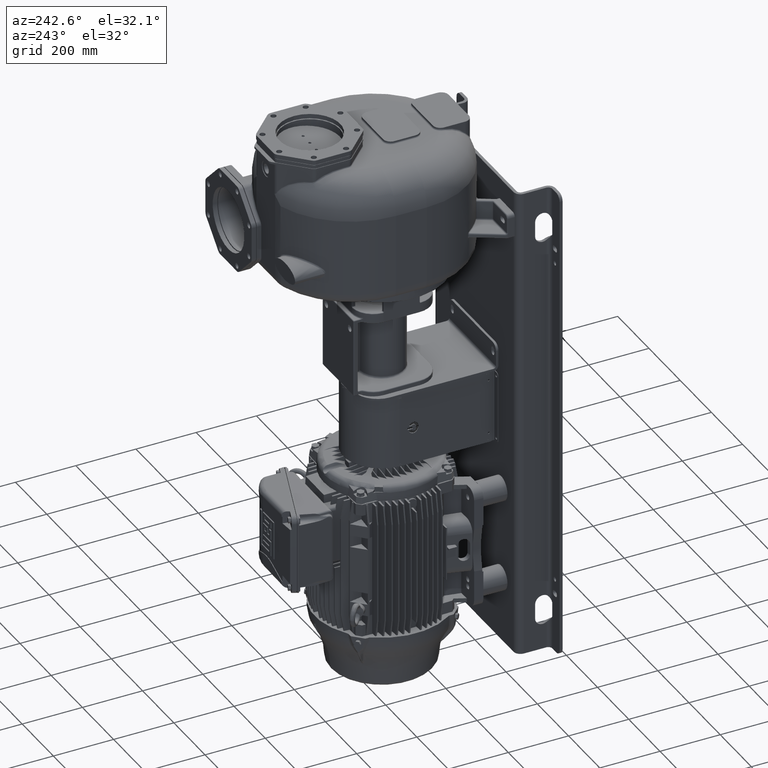
[diagram: clean part render]
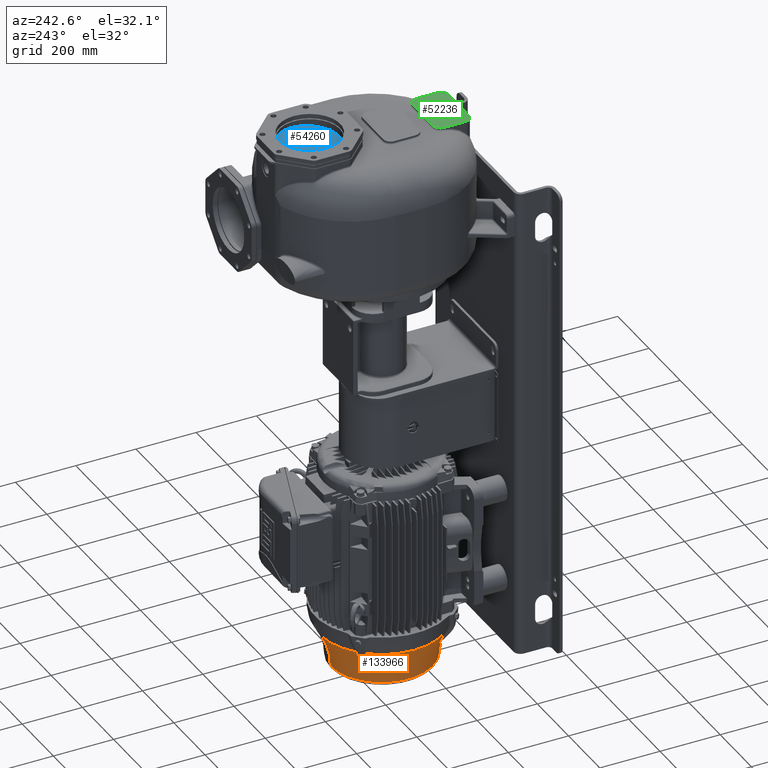
[diagram: same view with three faces highlighted in distinct colors, each labeled with its STEP entity id]
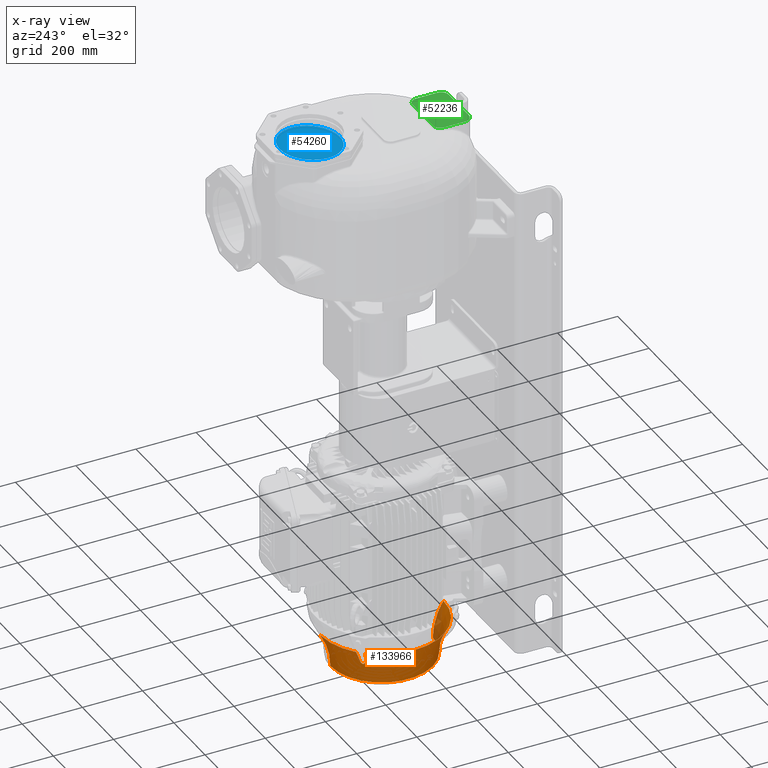
[diagram: x-ray of the same camera — body ghosted, the three highlighted faces saturated]
A machine part, auxiliary view with three faces highlighted in distinct colors.
The next image is the same camera in x-ray (body ghosted, the three faces saturated) — at least one of them is partly hidden behind the body in this view.
Their STEP definitions:

[orange] entity #133966 — the highlighted toroidal blend (fillet) surface has major radius 390 mm and minor (blend) radius 220 mm.
#72999=CARTESIAN_POINT('',(9.552245033349E-14,7.E2,-1.547963905070E3));
#73000=DIRECTION('',(-1.E0,0.E0,0.E0));
#73001=DIRECTION('',(0.E0,-1.E0,0.E0));
#73002=AXIS2_PLACEMENT_3D('',#72999,#73000,#73001);
#74268=CARTESIAN_POINT('',(-1.549465969935E2,1.755533733687E2,
-1.428680570476E3));
#74286=CARTESIAN_POINT('',(-1.549465969935E2,1.755533733687E2,
-1.428680570476E3));
#74287=CARTESIAN_POINT('',(-1.543256442728E2,1.759224251612E2,
-1.429782225322E3));
#74288=CARTESIAN_POINT('',(-1.531145892620E2,1.766664238559E2,
-1.431998289404E3));
#74289=CARTESIAN_POINT('',(-1.507932605186E2,1.781489328110E2,
-1.436478824012E3));
#74290=CARTESIAN_POINT('',(-1.480551888183E2,1.799593299854E2,
-1.442167005868E3));
#74291=CARTESIAN_POINT('',(-1.460038277682E2,1.813180234661E2,
-1.446807050398E3));
#74292=CARTESIAN_POINT('',(-1.450042930626E2,1.819640815810E2,
-1.449148011676E3));
#74357=CARTESIAN_POINT('',(-1.450041032760E2,1.819642040647E2,
-1.449148455922E3));
#74358=CARTESIAN_POINT('',(-1.446456203059E2,1.821959129458E2,
-1.449988045172E3));
#74359=CARTESIAN_POINT('',(-1.439494678881E2,1.826419752748E2,
-1.451639901061E3));
#74360=CARTESIAN_POINT('',(-1.429542021516E2,1.832611843021E2,
-1.454051077199E3));
#74361=CARTESIAN_POINT('',(-1.420246028947E2,1.838161668771E2,
-1.456339911570E3));
#74362=CARTESIAN_POINT('',(-1.411709360782E2,1.843001127421E2,
-1.458466017440E3));
#74363=CARTESIAN_POINT('',(-1.404019119103E2,1.847080038959E2,
-1.460391149504E3));
#74364=CARTESIAN_POINT('',(-1.397106406179E2,1.850470195816E2,
-1.462121432995E3));
#74365=CARTESIAN_POINT('',(-1.390839107523E2,1.853272446995E2,
-1.463682207425E3));
#74366=CARTESIAN_POINT('',(-1.385172007234E2,1.855553942213E2,
-1.465081176987E3));
#74367=CARTESIAN_POINT('',(-1.379993812194E2,1.857400875009E2,
-1.466343410639E3));
#74368=CARTESIAN_POINT('',(-1.375201293607E2,1.858890924801E2,
-1.467494124322E3));
#74369=CARTESIAN_POINT('',(-1.370779158682E2,1.860064024304E2,
-1.468537450346E3));
#74370=CARTESIAN_POINT('',(-1.366659210935E2,1.860970580981E2,
-1.469490386380E3));
#74371=CARTESIAN_POINT('',(-1.362751713653E2,1.861656778982E2,
-1.470374963436E3));
#74372=CARTESIAN_POINT('',(-1.359055204600E2,1.862145982541E2,
-1.471192993052E3));
#74373=CARTESIAN_POINT('',(-1.355600470637E2,1.862456822318E2,
-1.471939173205E3));
#74374=CARTESIAN_POINT('',(-1.352352436950E2,1.862616646440E2,
-1.472623189705E3));
#74375=CARTESIAN_POINT('',(-1.349247252433E2,1.862647280889E2,
-1.473260232773E3));
#74376=CARTESIAN_POINT('',(-1.346236302419E2,1.862560194446E2,
-1.473861126937E3));
#74377=CARTESIAN_POINT('',(-1.343352825293E2,1.862368967460E2,
-1.474420548704E3));
#74378=CARTESIAN_POINT('',(-1.340606933581E2,1.862089264975E2,
-1.474938297077E3));
#74379=CARTESIAN_POINT('',(-1.337967726080E2,1.861729993529E2,
-1.475421606817E3));
#74380=CARTESIAN_POINT('',(-1.335418672019E2,1.861298128012E2,
-1.475874578407E3));
#74381=CARTESIAN_POINT('',(-1.332965031890E2,1.860803167338E2,
-1.476297324663E3));
#74382=CARTESIAN_POINT('',(-1.330599726306E2,1.860251930907E2,
-1.476692123288E3));
#74383=CARTESIAN_POINT('',(-1.328319981488E2,1.859652184660E2,
-1.477060613618E3));
#74384=CARTESIAN_POINT('',(-1.326092915929E2,1.859001827589E2,
-1.477409021465E3));
#74385=CARTESIAN_POINT('',(-1.323928531273E2,1.858309266946E2,
-1.477736557581E3));
#74386=CARTESIAN_POINT('',(-1.321843656999E2,1.857585404841E2,
-1.478041468415E3));
#74387=CARTESIAN_POINT('',(-1.319834297366E2,1.856834838160E2,
-1.478325263802E3));
#74388=CARTESIAN_POINT('',(-1.317878555792E2,1.856054484400E2,
-1.478591840017E3));
#74389=CARTESIAN_POINT('',(-1.315963393231E2,1.855242727239E2,
-1.478843517348E3));
#74390=CARTESIAN_POINT('',(-1.314098362740E2,1.854407281949E2,
-1.479079624549E3));
#74391=CARTESIAN_POINT('',(-1.312287657252E2,1.853554278563E2,
-1.479300356807E3));
#74392=CARTESIAN_POINT('',(-1.310521788563E2,1.852682892790E2,
-1.479507497013E3));
#74393=CARTESIAN_POINT('',(-1.308800004784E2,1.851795628200E2,
-1.479701619878E3));
#74394=CARTESIAN_POINT('',(-1.307122152148E2,1.850894989528E2,
-1.479883184563E3));
#74395=CARTESIAN_POINT('',(-1.305486735714E2,1.849982655300E2,
-1.480052788221E3));
#74396=CARTESIAN_POINT('',(-1.303889988399E2,1.849059098043E2,
-1.480211290953E3));
#74397=CARTESIAN_POINT('',(-1.302323767988E2,1.848121832346E2,
-1.480359907248E3));
#74398=CARTESIAN_POINT('',(-1.300791457237E2,1.847174951155E2,
-1.480498699054E3));
#74399=CARTESIAN_POINT('',(-1.299298899034E2,1.846224080210E2,
-1.480627521509E3));
#74400=CARTESIAN_POINT('',(-1.297836164112E2,1.845264739854E2,
-1.480747587650E3));
#74401=CARTESIAN_POINT('',(-1.296401920163E2,1.844297468931E2,
-1.480859273541E3));
#74402=CARTESIAN_POINT('',(-1.294996486059E2,1.843323892654E2,
-1.480962827564E3));
#74403=CARTESIAN_POINT('',(-1.293616892885E2,1.842343474976E2,
-1.481058771336E3));
#74404=CARTESIAN_POINT('',(-1.292260861916E2,1.841355751606E2,
-1.481147489996E3));
#74405=CARTESIAN_POINT('',(-1.290930923449E2,1.840363533663E2,
-1.481229008948E3));
#74406=CARTESIAN_POINT('',(-1.289625434679E2,1.839366794701E2,
-1.481303675857E3));
#74407=CARTESIAN_POINT('',(-1.288340777303E2,1.838363806136E2,
-1.481371910027E3));
#74408=CARTESIAN_POINT('',(-1.287076911204E2,1.837355267940E2,
-1.481433861339E3));
#74409=CARTESIAN_POINT('',(-1.285833635376E2,1.836341753401E2,
-1.481489691468E3));
#74410=CARTESIAN_POINT('',(-1.284608416375E2,1.835321967739E2,
-1.481539675699E3));
#74411=CARTESIAN_POINT('',(-1.283400352938E2,1.834295885956E2,
-1.481584003181E3));
#74412=CARTESIAN_POINT('',(-1.282209445704E2,1.833263996581E2,
-1.481622776307E3));
#74413=CARTESIAN_POINT('',(-1.281033033770E2,1.832224383727E2,
-1.481656162691E3));
#74414=CARTESIAN_POINT('',(-1.279872110810E2,1.831178458278E2,
-1.481684248060E3));
#74415=CARTESIAN_POINT('',(-1.278725748673E2,1.830125711734E2,
-1.481707125504E3));
#74416=CARTESIAN_POINT('',(-1.277592939558E2,1.829065447186E2,
-1.481724864206E3));
#74417=CARTESIAN_POINT('',(-1.276470917058E2,1.827995316860E2,
-1.481737558906E3));
#74418=CARTESIAN_POINT('',(-1.275358773743E2,1.826914627100E2,
-1.481745254669E3));
#74419=CARTESIAN_POINT('',(-1.274258558343E2,1.825825453460E2,
-1.481747955044E3));
#74420=CARTESIAN_POINT('',(-1.273170475628E2,1.824728014266E2,
-1.481745664866E3));
#74421=CARTESIAN_POINT('',(-1.272091973670E2,1.823619730414E2,
-1.481738379133E3));
#74422=CARTESIAN_POINT('',(-1.271021023638E2,1.822498445721E2,
-1.481726067680E3));
#74423=CARTESIAN_POINT('',(-1.269958897895E2,1.821365358003E2,
-1.481708715506E3));
#74424=CARTESIAN_POINT('',(-1.268905610121E2,1.820220160503E2,
-1.481686253634E3));
#74425=CARTESIAN_POINT('',(-1.267859417198E2,1.819060731815E2,
-1.481658597013E3));
#74426=CARTESIAN_POINT('',(-1.266819100292E2,1.817885410632E2,
-1.481625645733E3));
#74427=CARTESIAN_POINT('',(-1.265785630215E2,1.816694646286E2,
-1.481587288244E3));
#74428=CARTESIAN_POINT('',(-1.264759518504E2,1.815488468585E2,
-1.481543423695E3));
#74429=CARTESIAN_POINT('',(-1.263738790924E2,1.814263995070E2,
-1.481493847638E3));
#74430=CARTESIAN_POINT('',(-1.262723575664E2,1.813020695506E2,
-1.481438418784E3));
#74431=CARTESIAN_POINT('',(-1.261715235143E2,1.811759294845E2,
-1.481377008602E3));
#74432=CARTESIAN_POINT('',(-1.260713040452E2,1.810477954584E2,
-1.481309375990E3));
#74433=CARTESIAN_POINT('',(-1.259715187256E2,1.809173321904E2,
-1.481235175839E3));
#74434=CARTESIAN_POINT('',(-1.258722478645E2,1.807845187878E2,
-1.481154198011E3));
#74435=CARTESIAN_POINT('',(-1.257737570170E2,1.806495586911E2,
-1.481066336291E3));
#74436=CARTESIAN_POINT('',(-1.256757624703E2,1.805119282730E2,
-1.480971055808E3));
#74437=CARTESIAN_POINT('',(-1.255781790945E2,1.803713360627E2,
-1.480867909301E3));
#74438=CARTESIAN_POINT('',(-1.254813001694E2,1.802280153847E2,
-1.480756809073E3));
#74439=CARTESIAN_POINT('',(-1.253850706087E2,1.800816759625E2,
-1.480637256128E3));
#74440=CARTESIAN_POINT('',(-1.252896002012E2,1.799322223069E2,
-1.480508835749E3));
#74441=CARTESIAN_POINT('',(-1.251951606624E2,1.797797811893E2,
-1.480371289763E3));
#74442=CARTESIAN_POINT('',(-1.251016608099E2,1.796238926742E2,
-1.480223837808E3));
#74443=CARTESIAN_POINT('',(-1.250092802971E2,1.794645192036E2,
-1.480066069729E3));
#74444=CARTESIAN_POINT('',(-1.249179116378E2,1.793011394046E2,
-1.479897120826E3));
#74445=CARTESIAN_POINT('',(-1.248275202648E2,1.791332925167E2,
-1.479716116187E3));
#74446=CARTESIAN_POINT('',(-1.247386042787E2,1.789614434323E2,
-1.479523120148E3));
#74447=CARTESIAN_POINT('',(-1.246511630179E2,1.787850633409E2,
-1.479317063587E3));
#74448=CARTESIAN_POINT('',(-1.245652943388E2,1.786036036397E2,
-1.479096646270E3));
#74449=CARTESIAN_POINT('',(-1.244819712701E2,1.784183402149E2,
-1.478862780412E3));
#74450=CARTESIAN_POINT('',(-1.244013483629E2,1.782289267278E2,
-1.478614532786E3));
#74451=CARTESIAN_POINT('',(-1.243231786896E2,1.780339137419E2,
-1.478349410654E3));
#74452=CARTESIAN_POINT('',(-1.242472791204E2,1.778316181893E2,
-1.478064324798E3));
#74453=CARTESIAN_POINT('',(-1.241743336455E2,1.776225446640E2,
-1.477759221800E3));
#74454=CARTESIAN_POINT('',(-1.241051579808E2,1.774077547508E2,
-1.477435012415E3));
#74455=CARTESIAN_POINT('',(-1.240401716969E2,1.771869466727E2,
-1.477090487901E3));
#74456=CARTESIAN_POINT('',(-1.239795586127E2,1.769587063839E2,
-1.476722581201E3));
#74457=CARTESIAN_POINT('',(-1.239238256146E2,1.767222199585E2,
-1.476328945824E3));
#74458=CARTESIAN_POINT('',(-1.238736296513E2,1.764767538193E2,
-1.475907204566E3));
#74459=CARTESIAN_POINT('',(-1.238301134669E2,1.762240660345E2,
-1.475459361650E3));
#74460=CARTESIAN_POINT('',(-1.237936077219E2,1.759613111550E2,
-1.474979368116E3));
#74461=CARTESIAN_POINT('',(-1.237649227746E2,1.756865769635E2,
-1.474462416318E3));
#74462=CARTESIAN_POINT('',(-1.237452600216E2,1.754008751695E2,
-1.473909181835E3));
#74463=CARTESIAN_POINT('',(-1.237357998038E2,1.751039091849E2,
-1.473317736304E3));
#74464=CARTESIAN_POINT('',(-1.237378465231E2,1.747914797230E2,
-1.472678192022E3));
#74465=CARTESIAN_POINT('',(-1.237529205428E2,1.744643051932E2,
-1.471990584687E3));
#74466=CARTESIAN_POINT('',(-1.237828809378E2,1.741188207190E2,
-1.471245915572E3));
#74467=CARTESIAN_POINT('',(-1.238301023359E2,1.737517769509E2,
-1.470435479675E3));
#74468=CARTESIAN_POINT('',(-1.238965285255E2,1.733658957744E2,
-1.469563495026E3));
#74469=CARTESIAN_POINT('',(-1.239850124043E2,1.729572655062E2,
-1.468619797279E3));
#74470=CARTESIAN_POINT('',(-1.241005473309E2,1.725161829570E2,
-1.467580453667E3));
#74471=CARTESIAN_POINT('',(-1.242471540397E2,1.720391441364E2,
-1.466436559466E3));
#74472=CARTESIAN_POINT('',(-1.244284693501E2,1.715256540271E2,
-1.465186223714E3));
#74473=CARTESIAN_POINT('',(-1.246529916140E2,1.709628553286E2,
-1.463798162305E3));
#74474=CARTESIAN_POINT('',(-1.249283052530E2,1.703421348436E2,
-1.462253327752E3));
#74475=CARTESIAN_POINT('',(-1.252617195781E2,1.696575988171E2,
-1.460540219278E3));
#74476=CARTESIAN_POINT('',(-1.256640902266E2,1.688944482862E2,
-1.458629445429E3));
#74477=CARTESIAN_POINT('',(-1.261419928751E2,1.680473240564E2,
-1.456518320314E3));
#74478=CARTESIAN_POINT('',(-1.266909376253E2,1.671242476408E2,
-1.454243097076E3));
#74479=CARTESIAN_POINT('',(-1.273050352412E2,1.661344356064E2,
-1.451841379587E3));
#74480=CARTESIAN_POINT('',(-1.277487611572E2,1.654406004386E2,
-1.450191879702E3));
#74481=CARTESIAN_POINT('',(-1.279795576065E2,1.650829705361E2,
-1.449352595645E3));
#74483=CARTESIAN_POINT('',(-1.279794063788E2,1.650832052466E2,
-1.449353146141E3));
#74484=CARTESIAN_POINT('',(-1.286307740896E2,1.640738764172E2,
-1.446984449432E3));
#74485=CARTESIAN_POINT('',(-1.300014210533E2,1.620037458198E2,
-1.442293118351E3));
#74486=CARTESIAN_POINT('',(-1.318284602033E2,1.592415948248E2,
-1.436547826833E3));
#74487=CARTESIAN_POINT('',(-1.333241251861E2,1.569006445129E2,
-1.432026435701E3));
#74488=CARTESIAN_POINT('',(-1.340745088173E2,1.556795144954E2,
-1.429791377684E3));
#74489=CARTESIAN_POINT('',(-1.344466266313E2,1.550534030065E2,
-1.428680570476E3));
#74559=CARTESIAN_POINT('',(0.E0,3.1E2,-1.428680570477E3));
#74560=DIRECTION('',(0.E0,0.E0,-1.E0));
#74561=DIRECTION('',(0.E0,-1.E0,0.E0));
#74562=AXIS2_PLACEMENT_3D('',#74559,#74560,#74561);
#74564=CARTESIAN_POINT('',(-1.433319559899E-12,-8.E1,-1.547963905070E3));
#74565=DIRECTION('',(1.E0,0.E0,0.E0));
#74566=DIRECTION('',(0.E0,1.E0,0.E0));
#74567=AXIS2_PLACEMENT_3D('',#74564,#74565,#74566);
#74569=CARTESIAN_POINT('',(-7.703462363040E0,5.15E2,-1.428680570477E3));
#74570=CARTESIAN_POINT('',(-7.187925530576E0,5.15E2,-1.428710571602E3));
#74571=CARTESIAN_POINT('',(-6.157799159671E0,5.150000000127E2,
-1.428764534546E3));
#74572=CARTESIAN_POINT('',(-4.615808008436E0,5.149999999556E2,
-1.428827387319E3));
#74573=CARTESIAN_POINT('',(-3.075955288132E0,5.150000001651E2,
-1.428872234501E3));
#74574=CARTESIAN_POINT('',(-1.537655427323E0,5.149999993841E2,
-1.428899124675E3));
#74575=CARTESIAN_POINT('',(-5.124570849017E-1,5.150000013270E2,
-1.428905092552E3));
#74576=CARTESIAN_POINT('',(-1.263384744391E-11,5.150000013270E2,
-1.428905092552E3));
#74578=CARTESIAN_POINT('',(0.E0,3.1E2,-1.428680570477E3));
#74579=DIRECTION('',(0.E0,0.E0,-1.E0));
#74580=DIRECTION('',(-6.553746403792E-1,7.553039657965E-1,0.E0));
#74581=AXIS2_PLACEMENT_3D('',#74578,#74579,#74580);
#74583=CARTESIAN_POINT('',(0.E0,3.1E2,-1.428680570477E3));
#74584=DIRECTION('',(0.E0,0.E0,-1.E0));
#74585=DIRECTION('',(-7.553039657965E-1,-6.553746403791E-1,0.E0));
#74586=AXIS2_PLACEMENT_3D('',#74583,#74584,#74585);
#74593=CARTESIAN_POINT('',(0.E0,3.1E2,-1.547963905070E3));
#74594=DIRECTION('',(0.E0,0.E0,-1.E0));
#74595=DIRECTION('',(0.E0,-1.E0,0.E0));
#74596=AXIS2_PLACEMENT_3D('',#74593,#74594,#74595);
#82476=CARTESIAN_POINT('',(-1.344466266313E2,4.649465969935E2,
-1.428680570476E3));
#82494=CARTESIAN_POINT('',(-1.344466266313E2,4.649465969935E2,
-1.428680570476E3));
#82495=CARTESIAN_POINT('',(-1.340775748388E2,4.643256442728E2,
-1.429782225322E3));
#82496=CARTESIAN_POINT('',(-1.333335761441E2,4.631145892619E2,
-1.431998289404E3));
#82497=CARTESIAN_POINT('',(-1.318510671890E2,4.607932605186E2,
-1.436478824012E3));
#82498=CARTESIAN_POINT('',(-1.300406700146E2,4.580551888183E2,
-1.442167005868E3));
#82499=CARTESIAN_POINT('',(-1.286819765339E2,4.560038277682E2,
-1.446807050398E3));
#82500=CARTESIAN_POINT('',(-1.280359184190E2,4.550042930626E2,
-1.449148011676E3));
#82518=CARTESIAN_POINT('',(-1.280357959353E2,4.550041032760E2,
-1.449148455922E3));
#82519=CARTESIAN_POINT('',(-1.278040870542E2,4.546456203058E2,
-1.449988045172E3));
#82520=CARTESIAN_POINT('',(-1.273580247252E2,4.539494678881E2,
-1.451639901061E3));
#82521=CARTESIAN_POINT('',(-1.267388156979E2,4.529542021516E2,
-1.454051077199E3));
#82522=CARTESIAN_POINT('',(-1.261838331229E2,4.520246028947E2,
-1.456339911570E3));
#82523=CARTESIAN_POINT('',(-1.256998872579E2,4.511709360782E2,
-1.458466017441E3));
#82524=CARTESIAN_POINT('',(-1.252919961041E2,4.504019119103E2,
-1.460391149504E3));
#82525=CARTESIAN_POINT('',(-1.249529804184E2,4.497106406179E2,
-1.462121432995E3));
#82526=CARTESIAN_POINT('',(-1.246727553005E2,4.490839107523E2,
-1.463682207425E3));
#82527=CARTESIAN_POINT('',(-1.244446057787E2,4.485172007234E2,
-1.465081176987E3));
#82528=CARTESIAN_POINT('',(-1.242599124991E2,4.479993812193E2,
-1.466343410639E3));
#82529=CARTESIAN_POINT('',(-1.241109075199E2,4.475201293607E2,
-1.467494124322E3));
#82530=CARTESIAN_POINT('',(-1.239935975696E2,4.470779158682E2,
-1.468537450346E3));
#82531=CARTESIAN_POINT('',(-1.239029419019E2,4.466659210935E2,
-1.469490386380E3));
#82532=CARTESIAN_POINT('',(-1.238343221018E2,4.462751713653E2,
-1.470374963436E3));
#82533=CARTESIAN_POINT('',(-1.237854017459E2,4.459055204599E2,
-1.471192993052E3));
#82534=CARTESIAN_POINT('',(-1.237543177682E2,4.455600470637E2,
-1.471939173205E3));
#82535=CARTESIAN_POINT('',(-1.237383353560E2,4.452352436949E2,
-1.472623189705E3));
#82536=CARTESIAN_POINT('',(-1.237352719111E2,4.449247252433E2,
-1.473260232773E3));
#82537=CARTESIAN_POINT('',(-1.237439805554E2,4.446236302419E2,
-1.473861126937E3));
#82538=CARTESIAN_POINT('',(-1.237631032540E2,4.443352825293E2,
-1.474420548704E3));
#82539=CARTESIAN_POINT('',(-1.237910735025E2,4.440606933581E2,
-1.474938297077E3));
#82540=CARTESIAN_POINT('',(-1.238270006471E2,4.437967726079E2,
-1.475421606817E3));
#82541=CARTESIAN_POINT('',(-1.238701871988E2,4.435418672019E2,
-1.475874578407E3));
#82542=CARTESIAN_POINT('',(-1.239196832662E2,4.432965031890E2,
-1.476297324663E3));
#82543=CARTESIAN_POINT('',(-1.239748069093E2,4.430599726306E2,
-1.476692123288E3));
#82544=CARTESIAN_POINT('',(-1.240347815340E2,4.428319981488E2,
-1.477060613618E3));
#82545=CARTESIAN_POINT('',(-1.240998172411E2,4.426092915929E2,
-1.477409021465E3));
#82546=CARTESIAN_POINT('',(-1.241690733054E2,4.423928531273E2,
-1.477736557581E3));
#82547=CARTESIAN_POINT('',(-1.242414595159E2,4.421843656999E2,
-1.478041468415E3));
#82548=CARTESIAN_POINT('',(-1.243165161840E2,4.419834297366E2,
-1.478325263802E3));
#82549=CARTESIAN_POINT('',(-1.243945515600E2,4.417878555792E2,
-1.478591840017E3));
#82550=CARTESIAN_POINT('',(-1.244757272761E2,4.415963393231E2,
-1.478843517348E3));
#82551=CARTESIAN_POINT('',(-1.245592718052E2,4.414098362740E2,
-1.479079624549E3));
#82552=CARTESIAN_POINT('',(-1.246445721437E2,4.412287657252E2,
-1.479300356807E3));
#82553=CARTESIAN_POINT('',(-1.247317107210E2,4.410521788562E2,
-1.479507497013E3));
#82554=CARTESIAN_POINT('',(-1.248204371801E2,4.408800004784E2,
-1.479701619878E3));
#82555=CARTESIAN_POINT('',(-1.249105010472E2,4.407122152148E2,
-1.479883184563E3));
#82556=CARTESIAN_POINT('',(-1.250017344700E2,4.405486735714E2,
-1.480052788221E3));
#82557=CARTESIAN_POINT('',(-1.250940901957E2,4.403889988398E2,
-1.480211290953E3));
#82558=CARTESIAN_POINT('',(-1.251878167654E2,4.402323767988E2,
-1.480359907248E3));
#82559=CARTESIAN_POINT('',(-1.252825048845E2,4.400791457236E2,
-1.480498699054E3));
#82560=CARTESIAN_POINT('',(-1.253775919790E2,4.399298899034E2,
-1.480627521509E3));
#82561=CARTESIAN_POINT('',(-1.254735260146E2,4.397836164113E2,
-1.480747587650E3));
#82562=CARTESIAN_POINT('',(-1.255702531069E2,4.396401920163E2,
-1.480859273541E3));
#82563=CARTESIAN_POINT('',(-1.256676107346E2,4.394996486059E2,
-1.480962827564E3));
#82564=CARTESIAN_POINT('',(-1.257656525024E2,4.393616892885E2,
-1.481058771336E3));
#82565=CARTESIAN_POINT('',(-1.258644248394E2,4.392260861916E2,
-1.481147489996E3));
#82566=CARTESIAN_POINT('',(-1.259636466337E2,4.390930923449E2,
-1.481229008948E3));
#82567=CARTESIAN_POINT('',(-1.260633205299E2,4.389625434679E2,
-1.481303675857E3));
#82568=CARTESIAN_POINT('',(-1.261636193864E2,4.388340777304E2,
-1.481371910027E3));
#82569=CARTESIAN_POINT('',(-1.262644732060E2,4.387076911204E2,
-1.481433861339E3));
#82570=CARTESIAN_POINT('',(-1.263658246599E2,4.385833635375E2,
-1.481489691468E3));
#82571=CARTESIAN_POINT('',(-1.264678032261E2,4.384608416375E2,
-1.481539675699E3));
#82572=CARTESIAN_POINT('',(-1.265704114044E2,4.383400352938E2,
-1.481584003181E3));
#82573=CARTESIAN_POINT('',(-1.266736003419E2,4.382209445704E2,
-1.481622776307E3));
#82574=CARTESIAN_POINT('',(-1.267775616273E2,4.381033033771E2,
-1.481656162691E3));
#82575=CARTESIAN_POINT('',(-1.268821541722E2,4.379872110810E2,
-1.481684248060E3));
#82576=CARTESIAN_POINT('',(-1.269874288266E2,4.378725748672E2,
-1.481707125504E3));
#82577=CARTESIAN_POINT('',(-1.270934552815E2,4.377592939558E2,
-1.481724864206E3));
#82578=CARTESIAN_POINT('',(-1.272004683140E2,4.376470917058E2,
-1.481737558906E3));
#82579=CARTESIAN_POINT('',(-1.273085372900E2,4.375358773743E2,
-1.481745254669E3));
#82580=CARTESIAN_POINT('',(-1.274174546540E2,4.374258558342E2,
-1.481747955044E3));
#82581=CARTESIAN_POINT('',(-1.275271985734E2,4.373170475627E2,
-1.481745664866E3));
#82582=CARTESIAN_POINT('',(-1.276380269586E2,4.372091973670E2,
-1.481738379133E3));
#82583=CARTESIAN_POINT('',(-1.277501554279E2,4.371021023638E2,
-1.481726067680E3));
#82584=CARTESIAN_POINT('',(-1.278634641997E2,4.369958897894E2,
-1.481708715506E3));
#82585=CARTESIAN_POINT('',(-1.279779839497E2,4.368905610121E2,
-1.481686253634E3));
#82586=CARTESIAN_POINT('',(-1.280939268185E2,4.367859417198E2,
-1.481658597013E3));
#82587=CARTESIAN_POINT('',(-1.282114589368E2,4.366819100292E2,
-1.481625645733E3));
#82588=CARTESIAN_POINT('',(-1.283305353715E2,4.365785630215E2,
-1.481587288244E3));
#82589=CARTESIAN_POINT('',(-1.284511531416E2,4.364759518504E2,
-1.481543423695E3));
#82590=CARTESIAN_POINT('',(-1.285736004930E2,4.363738790924E2,
-1.481493847638E3));
#82591=CARTESIAN_POINT('',(-1.286979304494E2,4.362723575664E2,
-1.481438418784E3));
#82592=CARTESIAN_POINT('',(-1.288240705155E2,4.361715235143E2,
-1.481377008602E3));
#82593=CARTESIAN_POINT('',(-1.289522045415E2,4.360713040452E2,
-1.481309375990E3));
#82594=CARTESIAN_POINT('',(-1.290826678096E2,4.359715187256E2,
-1.481235175839E3));
#82595=CARTESIAN_POINT('',(-1.292154812122E2,4.358722478644E2,
-1.481154198011E3));
#82596=CARTESIAN_POINT('',(-1.293504413089E2,4.357737570170E2,
-1.481066336291E3));
#82597=CARTESIAN_POINT('',(-1.294880717269E2,4.356757624703E2,
-1.480971055808E3));
#82598=CARTESIAN_POINT('',(-1.296286639374E2,4.355781790944E2,
-1.480867909301E3));
#82599=CARTESIAN_POINT('',(-1.297719846153E2,4.354813001694E2,
-1.480756809073E3));
#82600=CARTESIAN_POINT('',(-1.299183240375E2,4.353850706087E2,
-1.480637256128E3));
#82601=CARTESIAN_POINT('',(-1.300677776931E2,4.352896002012E2,
-1.480508835749E3));
#82602=CARTESIAN_POINT('',(-1.302202188107E2,4.351951606624E2,
-1.480371289763E3));
#82603=CARTESIAN_POINT('',(-1.303761073257E2,4.351016608099E2,
-1.480223837808E3));
#82604=CARTESIAN_POINT('',(-1.305354807964E2,4.350092802971E2,
-1.480066069729E3));
#82605=CARTESIAN_POINT('',(-1.306988605954E2,4.349179116378E2,
-1.479897120826E3));
#82606=CARTESIAN_POINT('',(-1.308667074833E2,4.348275202648E2,
-1.479716116187E3));
#82607=CARTESIAN_POINT('',(-1.310385565677E2,4.347386042787E2,
-1.479523120148E3));
#82608=CARTESIAN_POINT('',(-1.312149366591E2,4.346511630179E2,
-1.479317063587E3));
#82609=CARTESIAN_POINT('',(-1.313963963603E2,4.345652943388E2,
-1.479096646270E3));
#82610=CARTESIAN_POINT('',(-1.315816597851E2,4.344819712702E2,
-1.478862780412E3));
#82611=CARTESIAN_POINT('',(-1.317710732723E2,4.344013483629E2,
-1.478614532786E3));
#82612=CARTESIAN_POINT('',(-1.319660862581E2,4.343231786896E2,
-1.478349410654E3));
#82613=CARTESIAN_POINT('',(-1.321683818107E2,4.342472791204E2,
-1.478064324798E3));
#82614=CARTESIAN_POINT('',(-1.323774553360E2,4.341743336455E2,
-1.477759221800E3));
#82615=CARTESIAN_POINT('',(-1.325922452492E2,4.341051579808E2,
-1.477435012415E3));
#82616=CARTESIAN_POINT('',(-1.328130533273E2,4.340401716969E2,
-1.477090487901E3));
#82617=CARTESIAN_POINT('',(-1.330412936161E2,4.339795586127E2,
-1.476722581201E3));
#82618=CARTESIAN_POINT('',(-1.332777800415E2,4.339238256146E2,
-1.476328945824E3));
#82619=CARTESIAN_POINT('',(-1.335232461807E2,4.338736296513E2,
-1.475907204566E3));
#82620=CARTESIAN_POINT('',(-1.337759339655E2,4.338301134669E2,
-1.475459361650E3));
#82621=CARTESIAN_POINT('',(-1.340386888450E2,4.337936077219E2,
-1.474979368116E3));
#82622=CARTESIAN_POINT('',(-1.343134230365E2,4.337649227746E2,
-1.474462416318E3));
#82623=CARTESIAN_POINT('',(-1.345991248305E2,4.337452600216E2,
-1.473909181835E3));
#82624=CARTESIAN_POINT('',(-1.348960908151E2,4.337357998038E2,
-1.473317736304E3));
#82625=CARTESIAN_POINT('',(-1.352085202770E2,4.337378465230E2,
-1.472678192022E3));
#82626=CARTESIAN_POINT('',(-1.355356948068E2,4.337529205428E2,
-1.471990584687E3));
#82627=CARTESIAN_POINT('',(-1.358811792810E2,4.337828809378E2,
-1.471245915572E3));
#82628=CARTESIAN_POINT('',(-1.362482230491E2,4.338301023359E2,
-1.470435479675E3));
#82629=CARTESIAN_POINT('',(-1.366341042256E2,4.338965285255E2,
-1.469563495026E3));
#82630=CARTESIAN_POINT('',(-1.370427344938E2,4.339850124043E2,
-1.468619797279E3));
#82631=CARTESIAN_POINT('',(-1.374838170430E2,4.341005473309E2,
-1.467580453667E3));
#82632=CARTESIAN_POINT('',(-1.379608558636E2,4.342471540397E2,
-1.466436559466E3));
#82633=CARTESIAN_POINT('',(-1.384743459729E2,4.344284693501E2,
-1.465186223714E3));
#82634=CARTESIAN_POINT('',(-1.390371446714E2,4.346529916140E2,
-1.463798162305E3));
#82635=CARTESIAN_POINT('',(-1.396578651564E2,4.349283052530E2,
-1.462253327752E3));
#82636=CARTESIAN_POINT('',(-1.403424011829E2,4.352617195781E2,
-1.460540219278E3));
#82637=CARTESIAN_POINT('',(-1.411055517138E2,4.356640902266E2,
-1.458629445429E3));
#82638=CARTESIAN_POINT('',(-1.419526759436E2,4.361419928751E2,
-1.456518320314E3));
#82639=CARTESIAN_POINT('',(-1.428757523592E2,4.366909376254E2,
-1.454243097076E3));
#82640=CARTESIAN_POINT('',(-1.438655643936E2,4.373050352412E2,
-1.451841379587E3));
#82641=CARTESIAN_POINT('',(-1.445593995614E2,4.377487611572E2,
-1.450191879702E3));
#82642=CARTESIAN_POINT('',(-1.449170294639E2,4.379795576065E2,
-1.449352595644E3));
#82829=CARTESIAN_POINT('',(-1.449167947534E2,4.379794063788E2,
-1.449353146141E3));
#82830=CARTESIAN_POINT('',(-1.459261235828E2,4.386307740896E2,
-1.446984449432E3));
#82831=CARTESIAN_POINT('',(-1.479962541802E2,4.400014210533E2,
-1.442293118351E3));
#82832=CARTESIAN_POINT('',(-1.507584051752E2,4.418284602033E2,
-1.436547826833E3));
#82833=CARTESIAN_POINT('',(-1.530993554871E2,4.433241251861E2,
-1.432026435701E3));
#82834=CARTESIAN_POINT('',(-1.543204855046E2,4.440745088173E2,
-1.429791377684E3));
#82835=CARTESIAN_POINT('',(-1.549465969935E2,4.444466266313E2,
-1.428680570476E3));
#82837=CARTESIAN_POINT('',(-1.549465969935E2,4.444466266313E2,
-1.428680570476E3));
#124925=CARTESIAN_POINT('',(-7.539433205893E-13,1.048553112255E2,
-1.428680570477E3));
#124926=CARTESIAN_POINT('',(-1.344466266313E2,1.550534030066E2,
-1.428680570477E3));
#124927=VERTEX_POINT('',#124925);
#124928=VERTEX_POINT('',#124926);
#124975=VERTEX_POINT('',#82476);
#124979=VERTEX_POINT('',#74268);
#124982=VERTEX_POINT('',#82837);
#125035=CARTESIAN_POINT('',(-7.703462363048E0,5.15E2,-1.428680570477E3));
#125036=VERTEX_POINT('',#125035);
#125055=VERTEX_POINT('',#74576);
#125855=CARTESIAN_POINT('',(-9.267609836796E-13,1.4E2,-1.547963905070E3));
#125856=CARTESIAN_POINT('',(0.E0,4.8E2,-1.547963905070E3));
#125857=VERTEX_POINT('',#125855);
#125858=VERTEX_POINT('',#125856);
#126390=VERTEX_POINT('',#82829);
#126391=VERTEX_POINT('',#82518);
#126394=VERTEX_POINT('',#74483);
#126395=VERTEX_POINT('',#74357);
#133939=CARTESIAN_POINT('',(0.E0,3.1E2,-1.547963905070E3));
#133940=DIRECTION('',(0.E0,0.E0,1.E0));
#133941=DIRECTION('',(0.E0,1.E0,0.E0));
#133942=AXIS2_PLACEMENT_3D('',#133939,#133940,#133941);
#133943=TOROIDAL_SURFACE('',#133942,3.9E2,2.2E2);
#133944=ORIENTED_EDGE('',*,*,#133784,.T.);
#133945=ORIENTED_EDGE('',*,*,#133932,.F.);
#133946=ORIENTED_EDGE('',*,*,#131387,.F.);
#133948=ORIENTED_EDGE('',*,*,#133947,.T.);
#133949=ORIENTED_EDGE('',*,*,#131383,.T.);
#133951=ORIENTED_EDGE('',*,*,#133950,.F.);
#133953=ORIENTED_EDGE('',*,*,#133952,.F.);
#133955=ORIENTED_EDGE('',*,*,#133954,.T.);
#133957=ORIENTED_EDGE('',*,*,#133956,.T.);
#133959=ORIENTED_EDGE('',*,*,#133958,.T.);
#133961=ORIENTED_EDGE('',*,*,#133960,.F.);
#133962=ORIENTED_EDGE('',*,*,#133076,.T.);
#133963=ORIENTED_EDGE('',*,*,#133376,.T.);
#133964=EDGE_LOOP('',(#133944,#133945,#133946,#133948,#133949,#133951,#133953,
#133955,#133957,#133959,#133961,#133962,#133963));
#133965=FACE_OUTER_BOUND('',#133964,.F.);
#133966=ADVANCED_FACE('',(#133965),#133943,.F.);
#73003=CIRCLE('',#73002,2.2E2);
#74293=B_SPLINE_CURVE_WITH_KNOTS('',3,(#74286,#74287,#74288,#74289,#74290,
#74291,#74292),.UNSPECIFIED.,.F.,.F.,(4,1,1,1,4),(0.E0,1.666666666667E-1,
3.333333333333E-1,6.666666666667E-1,1.E0),.UNSPECIFIED.);
#74482=B_SPLINE_CURVE_WITH_KNOTS('',3,(#74357,#74358,#74359,#74360,#74361,
#74362,#74363,#74364,#74365,#74366,#74367,#74368,#74369,#74370,#74371,#74372,
#74373,#74374,#74375,#74376,#74377,#74378,#74379,#74380,#74381,#74382,#74383,
#74384,#74385,#74386,#74387,#74388,#74389,#74390,#74391,#74392,#74393,#74394,
#74395,#74396,#74397,#74398,#74399,#74400,#74401,#74402,#74403,#74404,#74405,
#74406,#74407,#74408,#74409,#74410,#74411,#74412,#74413,#74414,#74415,#74416,
#74417,#74418,#74419,#74420,#74421,#74422,#74423,#74424,#74425,#74426,#74427,
#74428,#74429,#74430,#74431,#74432,#74433,#74434,#74435,#74436,#74437,#74438,
#74439,#74440,#74441,#74442,#74443,#74444,#74445,#74446,#74447,#74448,#74449,
#74450,#74451,#74452,#74453,#74454,#74455,#74456,#74457,#74458,#74459,#74460,
#74461,#74462,#74463,#74464,#74465,#74466,#74467,#74468,#74469,#74470,#74471,
#74472,#74473,#74474,#74475,#74476,#74477,#74478,#74479,#74480,#74481),
.UNSPECIFIED.,.F.,.F.,(4,1,1,1,1,1,1,1,1,1,1,1,1,1,1,1,1,1,1,1,1,1,1,1,1,1,1,1,
1,1,1,1,1,1,1,1,1,1,1,1,1,1,1,1,1,1,1,1,1,1,1,1,1,1,1,1,1,1,1,1,1,1,1,1,1,1,1,1,
1,1,1,1,1,1,1,1,1,1,1,1,1,1,1,1,1,1,1,1,1,1,1,1,1,1,1,1,1,1,1,1,1,1,1,1,1,1,1,1,
1,1,1,1,1,1,1,1,1,1,1,1,1,1,4),(0.E0,8.196721311475E-3,1.639344262295E-2,
2.459016393443E-2,3.278688524590E-2,4.098360655738E-2,4.918032786885E-2,
5.737704918033E-2,6.557377049180E-2,7.377049180328E-2,8.196721311475E-2,
9.016393442623E-2,9.836065573770E-2,1.065573770492E-1,1.147540983607E-1,
1.229508196721E-1,1.311475409836E-1,1.393442622951E-1,1.475409836066E-1,
1.557377049180E-1,1.639344262295E-1,1.721311475410E-1,1.803278688525E-1,
1.885245901639E-1,1.967213114754E-1,2.049180327869E-1,2.131147540984E-1,
2.213114754098E-1,2.295081967213E-1,2.377049180328E-1,2.459016393443E-1,
2.540983606557E-1,2.622950819672E-1,2.704918032787E-1,2.786885245902E-1,
2.868852459016E-1,2.950819672131E-1,3.032786885246E-1,3.114754098361E-1,
3.196721311475E-1,3.278688524590E-1,3.360655737705E-1,3.442622950820E-1,
3.524590163934E-1,3.606557377049E-1,3.688524590164E-1,3.770491803279E-1,
3.852459016393E-1,3.934426229508E-1,4.016393442623E-1,4.098360655738E-1,
4.180327868852E-1,4.262295081967E-1,4.344262295082E-1,4.426229508197E-1,
4.508196721311E-1,4.590163934426E-1,4.672131147541E-1,4.754098360656E-1,
4.836065573770E-1,4.918032786885E-1,5.E-1,5.081967213115E-1,5.163934426230E-1,
5.245901639344E-1,5.327868852459E-1,5.409836065574E-1,5.491803278689E-1,
5.573770491803E-1,5.655737704918E-1,5.737704918033E-1,5.819672131148E-1,
5.901639344262E-1,5.983606557377E-1,6.065573770492E-1,6.147540983607E-1,
6.229508196721E-1,6.311475409836E-1,6.393442622951E-1,6.475409836066E-1,
6.557377049180E-1,6.639344262295E-1,6.721311475410E-1,6.803278688525E-1,
6.885245901639E-1,6.967213114754E-1,7.049180327869E-1,7.131147540984E-1,
7.213114754098E-1,7.295081967213E-1,7.377049180328E-1,7.459016393443E-1,
7.540983606557E-1,7.622950819672E-1,7.704918032787E-1,7.786885245902E-1,
7.868852459016E-1,7.950819672131E-1,8.032786885246E-1,8.114754098361E-1,
8.196721311475E-1,8.278688524590E-1,8.360655737705E-1,8.442622950820E-1,
8.524590163934E-1,8.606557377049E-1,8.688524590164E-1,8.770491803279E-1,
8.852459016393E-1,8.934426229508E-1,9.016393442623E-1,9.098360655738E-1,
9.180327868852E-1,9.262295081967E-1,9.344262295082E-1,9.426229508197E-1,
9.508196721311E-1,9.590163934426E-1,9.672131147541E-1,9.754098360656E-1,
9.836065573770E-1,9.918032786885E-1,1.E0),.UNSPECIFIED.);
#74490=B_SPLINE_CURVE_WITH_KNOTS('',3,(#74483,#74484,#74485,#74486,#74487,
#74488,#74489),.UNSPECIFIED.,.F.,.F.,(4,1,1,1,4),(0.E0,3.333333333333E-1,
6.666666666667E-1,8.333333333333E-1,1.E0),.UNSPECIFIED.);
#74563=CIRCLE('',#74562,2.051446887745E2);
#74568=CIRCLE('',#74567,2.2E2);
#74577=B_SPLINE_CURVE_WITH_KNOTS('',3,(#74569,#74570,#74571,#74572,#74573,
#74574,#74575,#74576),.UNSPECIFIED.,.F.,.F.,(4,1,1,1,1,4),(0.E0,2.E-1,4.E-1,
6.E-1,8.E-1,1.E0),.UNSPECIFIED.);
#74582=CIRCLE('',#74581,2.051446887745E2);
#74587=CIRCLE('',#74586,2.051446887745E2);
#74597=CIRCLE('',#74596,1.7E2);
#82501=B_SPLINE_CURVE_WITH_KNOTS('',3,(#82494,#82495,#82496,#82497,#82498,
#82499,#82500),.UNSPECIFIED.,.F.,.F.,(4,1,1,1,4),(0.E0,1.666666666667E-1,
3.333333333333E-1,6.666666666667E-1,1.E0),.UNSPECIFIED.);
#82643=B_SPLINE_CURVE_WITH_KNOTS('',3,(#82518,#82519,#82520,#82521,#82522,
#82523,#82524,#82525,#82526,#82527,#82528,#82529,#82530,#82531,#82532,#82533,
#82534,#82535,#82536,#82537,#82538,#82539,#82540,#82541,#82542,#82543,#82544,
#82545,#82546,#82547,#82548,#82549,#82550,#82551,#82552,#82553,#82554,#82555,
#82556,#82557,#82558,#82559,#82560,#82561,#82562,#82563,#82564,#82565,#82566,
#82567,#82568,#82569,#82570,#82571,#82572,#82573,#82574,#82575,#82576,#82577,
#82578,#82579,#82580,#82581,#82582,#82583,#82584,#82585,#82586,#82587,#82588,
#82589,#82590,#82591,#82592,#82593,#82594,#82595,#82596,#82597,#82598,#82599,
#82600,#82601,#82602,#82603,#82604,#82605,#82606,#82607,#82608,#82609,#82610,
#82611,#82612,#82613,#82614,#82615,#82616,#82617,#82618,#82619,#82620,#82621,
#82622,#82623,#82624,#82625,#82626,#82627,#82628,#82629,#82630,#82631,#82632,
#82633,#82634,#82635,#82636,#82637,#82638,#82639,#82640,#82641,#82642),
.UNSPECIFIED.,.F.,.F.,(4,1,1,1,1,1,1,1,1,1,1,1,1,1,1,1,1,1,1,1,1,1,1,1,1,1,1,1,
1,1,1,1,1,1,1,1,1,1,1,1,1,1,1,1,1,1,1,1,1,1,1,1,1,1,1,1,1,1,1,1,1,1,1,1,1,1,1,1,
1,1,1,1,1,1,1,1,1,1,1,1,1,1,1,1,1,1,1,1,1,1,1,1,1,1,1,1,1,1,1,1,1,1,1,1,1,1,1,1,
1,1,1,1,1,1,1,1,1,1,1,1,1,1,4),(0.E0,8.196721311475E-3,1.639344262295E-2,
2.459016393443E-2,3.278688524590E-2,4.098360655738E-2,4.918032786885E-2,
5.737704918033E-2,6.557377049180E-2,7.377049180328E-2,8.196721311475E-2,
9.016393442623E-2,9.836065573770E-2,1.065573770492E-1,1.147540983607E-1,
1.229508196721E-1,1.311475409836E-1,1.393442622951E-1,1.475409836066E-1,
1.557377049180E-1,1.639344262295E-1,1.721311475410E-1,1.803278688525E-1,
1.885245901639E-1,1.967213114754E-1,2.049180327869E-1,2.131147540984E-1,
2.213114754098E-1,2.295081967213E-1,2.377049180328E-1,2.459016393443E-1,
2.540983606557E-1,2.622950819672E-1,2.704918032787E-1,2.786885245902E-1,
2.868852459016E-1,2.950819672131E-1,3.032786885246E-1,3.114754098361E-1,
3.196721311475E-1,3.278688524590E-1,3.360655737705E-1,3.442622950820E-1,
3.524590163934E-1,3.606557377049E-1,3.688524590164E-1,3.770491803279E-1,
3.852459016393E-1,3.934426229508E-1,4.016393442623E-1,4.098360655738E-1,
4.180327868852E-1,4.262295081967E-1,4.344262295082E-1,4.426229508197E-1,
4.508196721311E-1,4.590163934426E-1,4.672131147541E-1,4.754098360656E-1,
4.836065573770E-1,4.918032786885E-1,5.E-1,5.081967213115E-1,5.163934426230E-1,
5.245901639344E-1,5.327868852459E-1,5.409836065574E-1,5.491803278689E-1,
5.573770491803E-1,5.655737704918E-1,5.737704918033E-1,5.819672131148E-1,
5.901639344262E-1,5.983606557377E-1,6.065573770492E-1,6.147540983607E-1,
6.229508196721E-1,6.311475409836E-1,6.393442622951E-1,6.475409836066E-1,
6.557377049180E-1,6.639344262295E-1,6.721311475410E-1,6.803278688525E-1,
6.885245901639E-1,6.967213114754E-1,7.049180327869E-1,7.131147540984E-1,
7.213114754098E-1,7.295081967213E-1,7.377049180328E-1,7.459016393443E-1,
7.540983606557E-1,7.622950819672E-1,7.704918032787E-1,7.786885245902E-1,
7.868852459016E-1,7.950819672131E-1,8.032786885246E-1,8.114754098361E-1,
8.196721311475E-1,8.278688524590E-1,8.360655737705E-1,8.442622950820E-1,
8.524590163934E-1,8.606557377049E-1,8.688524590164E-1,8.770491803279E-1,
8.852459016393E-1,8.934426229508E-1,9.016393442623E-1,9.098360655738E-1,
9.180327868852E-1,9.262295081967E-1,9.344262295082E-1,9.426229508197E-1,
9.508196721311E-1,9.590163934426E-1,9.672131147541E-1,9.754098360656E-1,
9.836065573770E-1,9.918032786885E-1,1.E0),.UNSPECIFIED.);
#82836=B_SPLINE_CURVE_WITH_KNOTS('',3,(#82829,#82830,#82831,#82832,#82833,
#82834,#82835),.UNSPECIFIED.,.F.,.F.,(4,1,1,1,4),(0.E0,3.333333333333E-1,
6.666666666667E-1,8.333333333333E-1,1.E0),.UNSPECIFIED.);
#131383=EDGE_CURVE('',#125858,#125055,#73003,.T.);
#131387=EDGE_CURVE('',#125857,#124927,#74568,.T.);
#133076=EDGE_CURVE('',#124979,#126395,#74293,.T.);
#133376=EDGE_CURVE('',#126395,#126394,#74482,.T.);
#133784=EDGE_CURVE('',#126394,#124928,#74490,.T.);
#133932=EDGE_CURVE('',#124927,#124928,#74563,.T.);
#133947=EDGE_CURVE('',#125857,#125858,#74597,.T.);
#133950=EDGE_CURVE('',#125036,#125055,#74577,.T.);
#133952=EDGE_CURVE('',#124975,#125036,#74582,.T.);
#133954=EDGE_CURVE('',#124975,#126391,#82501,.T.);
#133956=EDGE_CURVE('',#126391,#126390,#82643,.T.);
#133958=EDGE_CURVE('',#126390,#124982,#82836,.T.);
#133960=EDGE_CURVE('',#124979,#124982,#74587,.T.);

[blue] entity #54260 — the highlighted planar face has unit normal (0, -0.0698, 0.9976).
#19442=CARTESIAN_POINT('',(-6.224594465647E1,5.486476368089E2,2.69E2));
#19443=CARTESIAN_POINT('',(-6.297693414368E1,5.447963845864E2,
2.687306942101E2));
#19444=CARTESIAN_POINT('',(-6.377991530245E1,5.387138125190E2,
2.683053593370E2));
#19445=CARTESIAN_POINT('',(-6.407314445459E1,5.300489113014E2,
2.676994504190E2));
#19446=CARTESIAN_POINT('',(-6.385419808632E1,5.232992625586E2,
2.672274690007E2));
#19447=CARTESIAN_POINT('',(-6.314690590126E1,5.163321315223E2,
2.667402797390E2));
#19448=CARTESIAN_POINT('',(-6.190340386358E1,5.091909917210E2,
2.662409225990E2));
#19449=CARTESIAN_POINT('',(-6.007957256750E1,5.019290874736E2,
2.657331207864E2));
#19450=CARTESIAN_POINT('',(-5.763718061631E1,4.946095542709E2,
2.652212891646E2));
#19451=CARTESIAN_POINT('',(-5.454624692166E1,4.873048040523E2,
2.647104912697E2));
#19452=CARTESIAN_POINT('',(-5.078739888521E1,4.800953470242E2,
2.642063569239E2));
#19453=CARTESIAN_POINT('',(-4.635406735287E1,4.730679368667E2,
2.637149525354E2));
#19454=CARTESIAN_POINT('',(-4.125430536443E1,4.663130727562E2,
2.632426064230E2));
#19455=CARTESIAN_POINT('',(-3.551202069701E1,4.599219407818E2,
2.627956949394E2));
#19456=CARTESIAN_POINT('',(-2.916743423150E1,4.539829604933E2,
2.623804009816E2));
#19457=CARTESIAN_POINT('',(-2.227663166575E1,4.485781693817E2,
2.620024611699E2));
#19458=CARTESIAN_POINT('',(-1.491015828236E1,4.437797254685E2,
2.616669212848E2));
#19459=CARTESIAN_POINT('',(-7.150706057584E0,4.396468214933E2,
2.613779204857E2));
#19460=CARTESIAN_POINT('',(9.099562143157E-1,4.362232779054E2,
2.611385229971E2));
#19461=CARTESIAN_POINT('',(9.174573234398E0,4.335360172562E2,2.609506114270E2));
#19462=CARTESIAN_POINT('',(1.754422230300E1,4.315945292744E2,2.608148493620E2));
#19463=CARTESIAN_POINT('',(2.592205447083E1,4.303913295141E2,2.607307134387E2));
#19464=CARTESIAN_POINT('',(3.421667693571E1,4.299033129761E2,2.606965879980E2));
#19465=CARTESIAN_POINT('',(4.234495566323E1,4.300938233904E2,2.607099097839E2));
#19466=CARTESIAN_POINT('',(5.023409828031E1,4.309152095723E2,2.607673467010E2));
#19467=CARTESIAN_POINT('',(5.782296320256E1,4.323116247789E2,2.608649935645E2));
#19468=CARTESIAN_POINT('',(6.506262297790E1,4.342218431800E2,2.609985690474E2));
#19469=CARTESIAN_POINT('',(7.191625965991E1,4.365818987150E2,2.611636002070E2));
#19470=CARTESIAN_POINT('',(7.835855237293E1,4.393274321472E2,2.613555866070E2));
#19471=CARTESIAN_POINT('',(8.337190316306E1,4.418842205834E2,2.615343746712E2));
#19472=CARTESIAN_POINT('',(8.716669055667E1,4.440611285071E2,2.616865989021E2));
#19473=CARTESIAN_POINT('',(8.990497179083E1,4.457525090576E2,2.618048717518E2));
#19474=CARTESIAN_POINT('',(9.253588311484E1,4.474957671716E2,2.619267722341E2));
#19475=CARTESIAN_POINT('',(9.463957088602E1,4.489863023378E2,2.620310006064E2));
#19476=CARTESIAN_POINT('',(9.626987409887E1,4.501983187938E2,2.621157530532E2));
#19477=CARTESIAN_POINT('',(9.746651155103E1,4.511164257671E2,2.621799533469E2));
#19478=CARTESIAN_POINT('',(9.844197634948E1,4.518883605754E2,2.622339322870E2));
#19479=CARTESIAN_POINT('',(9.920977299695E1,4.525099600114E2,2.622773987539E2));
#19480=CARTESIAN_POINT('',(9.977845566774E1,4.529773496427E2,2.623100818207E2));
#19481=CARTESIAN_POINT('',(1.003436929052E2,4.534489001838E2,2.623430558468E2));
#19482=CARTESIAN_POINT('',(1.010975650733E2,4.540873156479E2,2.623876982049E2));
#19483=CARTESIAN_POINT('',(1.020378608508E2,4.549017226545E2,2.624446470904E2));
#19484=CARTESIAN_POINT('',(1.031630083257E2,4.559061651695E2,2.625148845533E2));
#19485=CARTESIAN_POINT('',(1.046577783642E2,4.572818595350E2,2.626110824745E2));
#19486=CARTESIAN_POINT('',(1.065144567739E2,4.590706978741E2,2.627361702366E2));
#19487=CARTESIAN_POINT('',(1.087177399642E2,4.613303851157E2,2.628941829614E2));
#19488=CARTESIAN_POINT('',(1.108900775032E2,4.637052328795E2,2.630602484944E2));
#19489=CARTESIAN_POINT('',(1.137364394279E2,4.670275157187E2,2.632925651417E2));
#19490=CARTESIAN_POINT('',(1.171832518273E2,4.714761489399E2,2.636036438804E2));
#19491=CARTESIAN_POINT('',(1.210819624308E2,4.772934631704E2,2.640104301186E2));
#19492=CARTESIAN_POINT('',(1.246786625623E2,4.835867886873E2,2.644505023085E2));
#19493=CARTESIAN_POINT('',(1.279054001366E2,4.903432502338E2,2.649229601245E2));
#19494=CARTESIAN_POINT('',(1.306924654163E2,4.975386038293E2,2.654261082622E2));
#19495=CARTESIAN_POINT('',(1.329705826925E2,5.051361974068E2,2.659573837595E2));
#19496=CARTESIAN_POINT('',(1.346734833446E2,5.130863759368E2,2.665133143985E2));
#19497=CARTESIAN_POINT('',(1.357407779587E2,5.213265096847E2,2.670895206815E2));
#19498=CARTESIAN_POINT('',(1.361209507032E2,5.297817583611E2,2.676807692656E2));
#19499=CARTESIAN_POINT('',(1.357742592556E2,5.383666407805E2,2.682810827241E2));
#19500=CARTESIAN_POINT('',(1.346752904109E2,5.469874024501E2,2.688839051042E2));
#19501=CARTESIAN_POINT('',(1.328149206972E2,5.555450862190E2,2.694823166478E2));
#19502=CARTESIAN_POINT('',(1.302014646142E2,5.639391222803E2,2.700692848289E2));
#19503=CARTESIAN_POINT('',(1.268608612650E2,5.720711800371E2,2.706379337024E2));
#19504=CARTESIAN_POINT('',(1.228358450164E2,5.798489799290E2,2.711818104527E2));
#19505=CARTESIAN_POINT('',(1.181841531702E2,5.871897583110E2,2.716951276822E2));
#19506=CARTESIAN_POINT('',(1.129759255770E2,5.940231152059E2,2.721729625447E2));
#19507=CARTESIAN_POINT('',(1.072905306150E2,6.002930470729E2,2.726113988913E2));
#19508=CARTESIAN_POINT('',(1.012130966836E2,6.059590614399E2,2.730076052124E2));
#19509=CARTESIAN_POINT('',(9.483103385179E1,6.109963705640E2,2.733598481802E2));
#19510=CARTESIAN_POINT('',(8.823079908410E1,6.153952508616E2,2.736674478555E2));
#19511=CARTESIAN_POINT('',(8.149510292521E1,6.191597218740E2,2.739306853121E2));
#19512=CARTESIAN_POINT('',(7.470067793342E1,6.223057356892E2,2.741506760285E2));
#19513=CARTESIAN_POINT('',(6.791668142005E1,6.248590798271E2,2.743292232439E2));
#19514=CARTESIAN_POINT('',(6.120365099589E1,6.268531710074E2,2.744686636828E2));
#19515=CARTESIAN_POINT('',(5.461322315106E1,6.283269269187E2,2.745717187353E2));
#19516=CARTESIAN_POINT('',(4.604562878893E1,6.296546404771E2,2.746645615116E2));
#19517=CARTESIAN_POINT('',(3.992001139180E1,6.3E2,2.746887114020E2));
#19518=CARTESIAN_POINT('',(3.6E1,6.3E2,2.746887114020E2));
#19530=CARTESIAN_POINT('',(-6.224594465647E1,5.486476368089E2,2.69E2));
#19531=CARTESIAN_POINT('',(-6.160332031856E1,5.520333331191E2,
2.692367509492E2));
#19532=CARTESIAN_POINT('',(-6.002575063595E1,5.584527214222E2,
2.696856383078E2));
#19533=CARTESIAN_POINT('',(-5.695628003693E1,5.672351322791E2,
2.702997643002E2));
#19534=CARTESIAN_POINT('',(-5.329137151620E1,5.753005343882E2,
2.708637521568E2));
#19535=CARTESIAN_POINT('',(-4.910284078935E1,5.827354061116E2,
2.713836490336E2));
#19536=CARTESIAN_POINT('',(-4.443925432255E1,5.895982297528E2,
2.718635444118E2));
#19537=CARTESIAN_POINT('',(-3.933345175309E1,5.959285498323E2,
2.723062035135E2));
#19538=CARTESIAN_POINT('',(-3.380661130589E1,6.017518685427E2,
2.727134096259E2));
#19539=CARTESIAN_POINT('',(-2.787060482187E1,6.070824816040E2,
2.730861624029E2));
#19540=CARTESIAN_POINT('',(-2.152919581737E1,6.119249209314E2,
2.734247787471E2));
#19541=CARTESIAN_POINT('',(-1.477840643622E1,6.162743965080E2,
2.737289237078E2));
#19542=CARTESIAN_POINT('',(-7.606129435826E0,6.201163291500E2,
2.739975778092E2));
#19543=CARTESIAN_POINT('',(9.095787486828E-3,6.234248766328E2,
2.742289339868E2));
#19544=CARTESIAN_POINT('',(8.100476906956E0,6.261600512578E2,2.744201960285E2));
#19545=CARTESIAN_POINT('',(1.671709632997E1,6.282627494404E2,2.745672310088E2));
#19546=CARTESIAN_POINT('',(2.593155800183E1,6.296455436555E2,2.746639253999E2));
#19547=CARTESIAN_POINT('',(3.254573357191E1,6.3E2,2.746887114020E2));
#19548=CARTESIAN_POINT('',(3.6E1,6.3E2,2.746887114020E2));
#19550=CARTESIAN_POINT('',(3.6E1,5.299629012647E2,2.676934360114E2));
#19551=DIRECTION('',(0.E0,-6.975647374412E-2,9.975640502598E-1));
#19552=DIRECTION('',(1.E0,0.E0,0.E0));
#19553=AXIS2_PLACEMENT_3D('',#19550,#19551,#19552);
#19555=CARTESIAN_POINT('',(3.6E1,5.299629012647E2,2.676934360114E2));
#19556=DIRECTION('',(0.E0,-6.975647374412E-2,9.975640502598E-1));
#19557=DIRECTION('',(-1.E0,0.E0,0.E0));
#19558=AXIS2_PLACEMENT_3D('',#19555,#19556,#19557);
#19560=CARTESIAN_POINT('',(7.85E1,5.299629012647E2,2.676934360114E2));
#19561=DIRECTION('',(0.E0,-6.975647374412E-2,9.975640502598E-1));
#19562=DIRECTION('',(1.E0,0.E0,0.E0));
#19563=AXIS2_PLACEMENT_3D('',#19560,#19561,#19562);
#19565=CARTESIAN_POINT('',(7.85E1,5.299629012647E2,2.676934360114E2));
#19566=DIRECTION('',(0.E0,-6.975647374412E-2,9.975640502598E-1));
#19567=DIRECTION('',(-1.E0,0.E0,0.E0));
#19568=AXIS2_PLACEMENT_3D('',#19565,#19566,#19567);
#19570=CARTESIAN_POINT('',(-6.5E0,5.299629012647E2,2.676934360114E2));
#19571=DIRECTION('',(0.E0,-6.975647374412E-2,9.975640502598E-1));
#19572=DIRECTION('',(1.E0,-2.526374171591E-14,0.E0));
#19573=AXIS2_PLACEMENT_3D('',#19570,#19571,#19572);
#19575=CARTESIAN_POINT('',(-6.5E0,5.299629012647E2,2.676934360114E2));
#19576=DIRECTION('',(0.E0,-6.975647374412E-2,9.975640502598E-1));
#19577=DIRECTION('',(-1.E0,-2.526374171591E-14,0.E0));
#19578=AXIS2_PLACEMENT_3D('',#19575,#19576,#19577);
#32515=CARTESIAN_POINT('',(4.05E1,5.299629012647E2,2.676934360114E2));
#32516=CARTESIAN_POINT('',(3.15E1,5.299629012647E2,2.676934360114E2));
#32517=VERTEX_POINT('',#32515);
#32518=VERTEX_POINT('',#32516);
#32519=CARTESIAN_POINT('',(8.3E1,5.299629012647E2,2.676934360114E2));
#32520=CARTESIAN_POINT('',(7.4E1,5.299629012647E2,2.676934360114E2));
#32521=VERTEX_POINT('',#32519);
#32522=VERTEX_POINT('',#32520);
#32523=CARTESIAN_POINT('',(-2.E0,5.299629012647E2,2.676934360114E2));
#32524=CARTESIAN_POINT('',(-1.1E1,5.299629012647E2,2.676934360114E2));
#32525=VERTEX_POINT('',#32523);
#32526=VERTEX_POINT('',#32524);
#32662=CARTESIAN_POINT('',(-6.224594465647E1,5.486476368089E2,2.69E2));
#32664=VERTEX_POINT('',#32662);
#32745=VERTEX_POINT('',#19548);
#54233=CARTESIAN_POINT('',(3.6E1,5.299629012647E2,2.676934360114E2));
#54234=DIRECTION('',(0.E0,-6.975647374412E-2,9.975640502598E-1));
#54235=DIRECTION('',(1.E0,0.E0,0.E0));
#54236=AXIS2_PLACEMENT_3D('',#54233,#54234,#54235);
#54237=PLANE('',#54236);
#54238=ORIENTED_EDGE('',*,*,#54224,.F.);
#54239=ORIENTED_EDGE('',*,*,#54214,.T.);
#54240=EDGE_LOOP('',(#54238,#54239));
#54241=FACE_OUTER_BOUND('',#54240,.F.);
#54243=ORIENTED_EDGE('',*,*,#54242,.T.);
#54245=ORIENTED_EDGE('',*,*,#54244,.T.);
#54246=EDGE_LOOP('',(#54243,#54245));
#54247=FACE_BOUND('',#54246,.F.);
#54249=ORIENTED_EDGE('',*,*,#54248,.T.);
#54251=ORIENTED_EDGE('',*,*,#54250,.T.);
#54252=EDGE_LOOP('',(#54249,#54251));
#54253=FACE_BOUND('',#54252,.F.);
#54255=ORIENTED_EDGE('',*,*,#54254,.T.);
#54257=ORIENTED_EDGE('',*,*,#54256,.T.);
#54258=EDGE_LOOP('',(#54255,#54257));
#54259=FACE_BOUND('',#54258,.F.);
#54260=ADVANCED_FACE('',(#54241,#54247,#54253,#54259),#54237,.T.);
#19519=B_SPLINE_CURVE_WITH_KNOTS('',3,(#19442,#19443,#19444,#19445,#19446,
#19447,#19448,#19449,#19450,#19451,#19452,#19453,#19454,#19455,#19456,#19457,
#19458,#19459,#19460,#19461,#19462,#19463,#19464,#19465,#19466,#19467,#19468,
#19469,#19470,#19471,#19472,#19473,#19474,#19475,#19476,#19477,#19478,#19479,
#19480,#19481,#19482,#19483,#19484,#19485,#19486,#19487,#19488,#19489,#19490,
#19491,#19492,#19493,#19494,#19495,#19496,#19497,#19498,#19499,#19500,#19501,
#19502,#19503,#19504,#19505,#19506,#19507,#19508,#19509,#19510,#19511,#19512,
#19513,#19514,#19515,#19516,#19517,#19518),.UNSPECIFIED.,.F.,.F.,(4,1,1,1,1,1,1,
1,1,1,1,1,1,1,1,1,1,1,1,1,1,1,1,1,1,1,1,1,1,1,1,1,1,1,1,1,1,1,1,1,1,1,1,1,1,1,1,
1,1,1,1,1,1,1,1,1,1,1,1,1,1,1,1,1,1,1,1,1,1,1,1,1,1,1,4),(0.E0,3.125E-2,
4.6875E-2,6.25E-2,7.8125E-2,9.375E-2,1.09375E-1,1.25E-1,1.40625E-1,1.5625E-1,
1.71875E-1,1.875E-1,2.03125E-1,2.1875E-1,2.34375E-1,2.5E-1,2.65625E-1,2.8125E-1,
2.96875E-1,3.125E-1,3.28125E-1,3.4375E-1,3.59375E-1,3.75E-1,3.90625E-1,
4.0625E-1,4.21875E-1,4.375E-1,4.53125E-1,4.609375E-1,4.6875E-1,4.765625E-1,
4.84375E-1,4.8828125E-1,4.921875E-1,4.9609375E-1,4.98046875E-1,5.E-1,
5.01953125E-1,5.0390625E-1,5.078125E-1,5.1171875E-1,5.15625E-1,5.234375E-1,
5.3125E-1,5.390625E-1,5.46875E-1,5.625E-1,5.78125E-1,5.9375E-1,6.09375E-1,
6.25E-1,6.40625E-1,6.5625E-1,6.71875E-1,6.875E-1,7.03125E-1,7.1875E-1,
7.34375E-1,7.5E-1,7.65625E-1,7.8125E-1,7.96875E-1,8.125E-1,8.28125E-1,8.4375E-1,
8.59375E-1,8.75E-1,8.90625E-1,9.0625E-1,9.21875E-1,9.375E-1,9.53125E-1,
9.6875E-1,1.E0),.UNSPECIFIED.);
#19549=B_SPLINE_CURVE_WITH_KNOTS('',3,(#19530,#19531,#19532,#19533,#19534,
#19535,#19536,#19537,#19538,#19539,#19540,#19541,#19542,#19543,#19544,#19545,
#19546,#19547,#19548),.UNSPECIFIED.,.F.,.F.,(4,1,1,1,1,1,1,1,1,1,1,1,1,1,1,1,4),
(0.E0,6.25E-2,1.25E-1,1.875E-1,2.5E-1,3.125E-1,3.75E-1,4.375E-1,5.E-1,5.625E-1,
6.25E-1,6.875E-1,7.5E-1,8.125E-1,8.75E-1,9.375E-1,1.E0),.UNSPECIFIED.);
#19554=CIRCLE('',#19553,4.5E0);
#19559=CIRCLE('',#19558,4.5E0);
#19564=CIRCLE('',#19563,4.5E0);
#19569=CIRCLE('',#19568,4.5E0);
#19574=CIRCLE('',#19573,4.5E0);
#19579=CIRCLE('',#19578,4.5E0);
#54214=EDGE_CURVE('',#32664,#32745,#19549,.T.);
#54224=EDGE_CURVE('',#32664,#32745,#19519,.T.);
#54242=EDGE_CURVE('',#32517,#32518,#19554,.T.);
#54244=EDGE_CURVE('',#32518,#32517,#19559,.T.);
#54248=EDGE_CURVE('',#32521,#32522,#19564,.T.);
#54250=EDGE_CURVE('',#32522,#32521,#19569,.T.);
#54254=EDGE_CURVE('',#32525,#32526,#19574,.T.);
#54256=EDGE_CURVE('',#32526,#32525,#19579,.T.);

[green] entity #52236 — the highlighted planar face has unit normal (0, 0, 1).
#17048=CARTESIAN_POINT('',(-2.9E1,1.3E2,2.56E2));
#17049=DIRECTION('',(0.E0,0.E0,1.E0));
#17050=DIRECTION('',(0.E0,1.E0,0.E0));
#17051=AXIS2_PLACEMENT_3D('',#17048,#17049,#17050);
#17053=DIRECTION('',(-1.E0,0.E0,0.E0));
#17054=VECTOR('',#17053,1.3E2);
#17055=CARTESIAN_POINT('',(1.01E2,1.55E2,2.56E2));
#17056=LINE('',#17055,#17054);
#17057=CARTESIAN_POINT('',(1.01E2,1.3E2,2.56E2));
#17058=DIRECTION('',(0.E0,0.E0,1.E0));
#17059=DIRECTION('',(1.E0,0.E0,0.E0));
#17060=AXIS2_PLACEMENT_3D('',#17057,#17058,#17059);
#17062=DIRECTION('',(0.E0,1.E0,0.E0));
#17063=VECTOR('',#17062,7.E1);
#17064=CARTESIAN_POINT('',(1.26E2,6.E1,2.56E2));
#17065=LINE('',#17064,#17063);
#17066=CARTESIAN_POINT('',(1.01E2,6.E1,2.56E2));
#17067=DIRECTION('',(0.E0,0.E0,1.E0));
#17068=DIRECTION('',(0.E0,-1.E0,0.E0));
#17069=AXIS2_PLACEMENT_3D('',#17066,#17067,#17068);
#17071=DIRECTION('',(1.E0,0.E0,0.E0));
#17072=VECTOR('',#17071,1.3E2);
#17073=CARTESIAN_POINT('',(-2.9E1,3.5E1,2.56E2));
#17074=LINE('',#17073,#17072);
#17075=CARTESIAN_POINT('',(-2.9E1,6.E1,2.56E2));
#17076=DIRECTION('',(0.E0,0.E0,1.E0));
#17077=DIRECTION('',(-1.E0,0.E0,0.E0));
#17078=AXIS2_PLACEMENT_3D('',#17075,#17076,#17077);
#17080=DIRECTION('',(0.E0,-1.E0,0.E0));
#17081=VECTOR('',#17080,7.E1);
#17082=CARTESIAN_POINT('',(-5.4E1,1.3E2,2.56E2));
#17083=LINE('',#17082,#17081);
#31927=CARTESIAN_POINT('',(-2.9E1,1.55E2,2.56E2));
#31928=CARTESIAN_POINT('',(-5.4E1,1.3E2,2.56E2));
#31929=VERTEX_POINT('',#31927);
#31930=VERTEX_POINT('',#31928);
#31931=CARTESIAN_POINT('',(-5.4E1,6.E1,2.56E2));
#31932=VERTEX_POINT('',#31931);
#31933=CARTESIAN_POINT('',(-2.9E1,3.5E1,2.56E2));
#31934=VERTEX_POINT('',#31933);
#31935=CARTESIAN_POINT('',(1.01E2,3.5E1,2.56E2));
#31936=VERTEX_POINT('',#31935);
#31937=CARTESIAN_POINT('',(1.26E2,6.E1,2.56E2));
#31938=VERTEX_POINT('',#31937);
#31939=CARTESIAN_POINT('',(1.26E2,1.3E2,2.56E2));
#31940=VERTEX_POINT('',#31939);
#31941=CARTESIAN_POINT('',(1.01E2,1.55E2,2.56E2));
#31942=VERTEX_POINT('',#31941);
#52221=CARTESIAN_POINT('',(0.E0,3.1E2,2.56E2));
#52222=DIRECTION('',(0.E0,0.E0,1.E0));
#52223=DIRECTION('',(1.E0,0.E0,0.E0));
#52224=AXIS2_PLACEMENT_3D('',#52221,#52222,#52223);
#52225=PLANE('',#52224);
#52226=ORIENTED_EDGE('',*,*,#52157,.F.);
#52227=ORIENTED_EDGE('',*,*,#52173,.F.);
#52228=ORIENTED_EDGE('',*,*,#52187,.F.);
#52229=ORIENTED_EDGE('',*,*,#52200,.F.);
#52230=ORIENTED_EDGE('',*,*,#52215,.F.);
#52231=ORIENTED_EDGE('',*,*,#52114,.F.);
#52232=ORIENTED_EDGE('',*,*,#52129,.F.);
#52233=ORIENTED_EDGE('',*,*,#52144,.F.);
#52234=EDGE_LOOP('',(#52226,#52227,#52228,#52229,#52230,#52231,#52232,#52233));
#52235=FACE_OUTER_BOUND('',#52234,.F.);
#52236=ADVANCED_FACE('',(#52235),#52225,.T.);
#17052=CIRCLE('',#17051,2.5E1);
#17061=CIRCLE('',#17060,2.5E1);
#17070=CIRCLE('',#17069,2.5E1);
#17079=CIRCLE('',#17078,2.5E1);
#52114=EDGE_CURVE('',#31934,#31936,#17074,.T.);
#52129=EDGE_CURVE('',#31932,#31934,#17079,.T.);
#52144=EDGE_CURVE('',#31930,#31932,#17083,.T.);
#52157=EDGE_CURVE('',#31929,#31930,#17052,.T.);
#52173=EDGE_CURVE('',#31942,#31929,#17056,.T.);
#52187=EDGE_CURVE('',#31940,#31942,#17061,.T.);
#52200=EDGE_CURVE('',#31938,#31940,#17065,.T.);
#52215=EDGE_CURVE('',#31936,#31938,#17070,.T.);